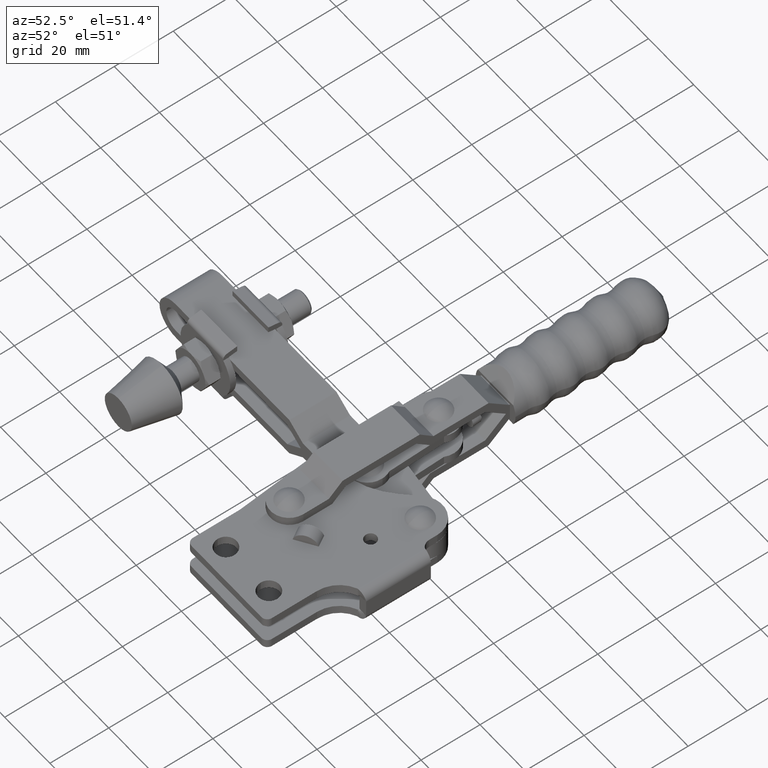
[diagram: clean part render]
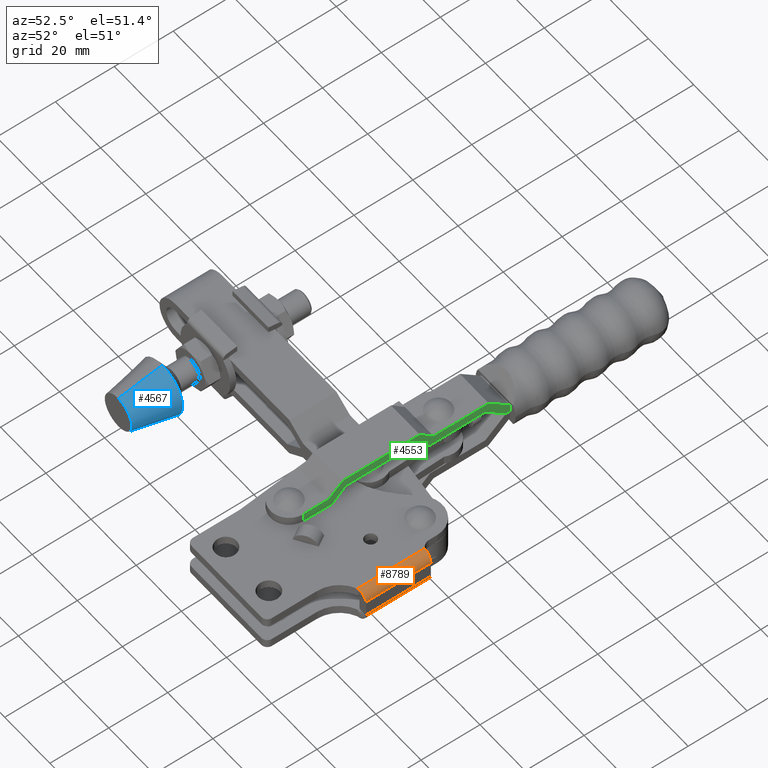
[diagram: same view with three faces highlighted in distinct colors, each labeled with its STEP entity id]
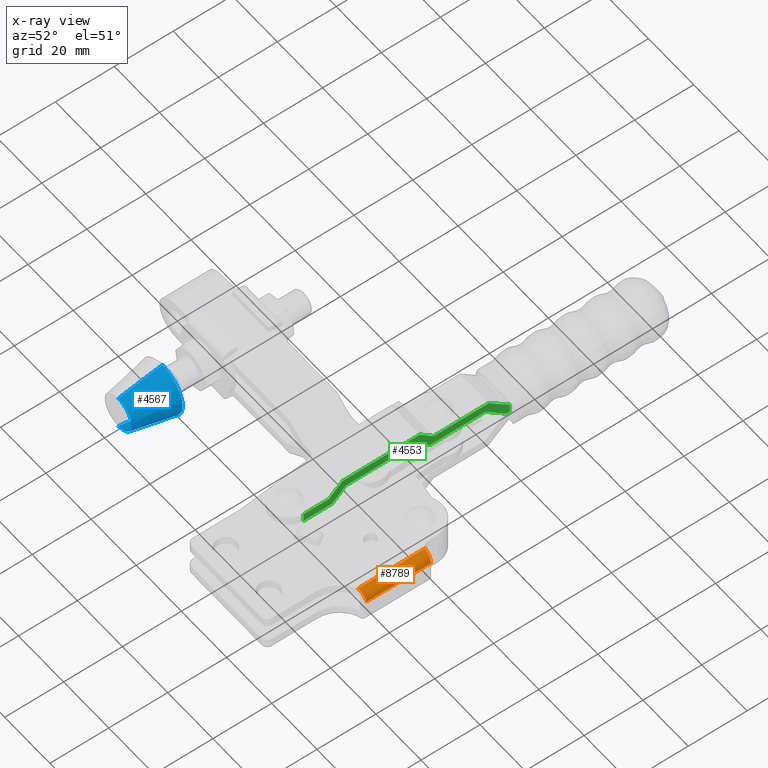
[diagram: x-ray of the same camera — body ghosted, the three highlighted faces saturated]
A machine part, auxiliary view with three faces highlighted in distinct colors.
The next image is the same camera in x-ray (body ghosted, the three faces saturated) — at least one of them is partly hidden behind the body in this view.
Their STEP definitions:

[orange] entity #8789 — the highlighted cylindrical surface (edge-blend (fillet) strip) has radius 3.1 mm, axis along (-0, 1, 0).
#142 = CARTESIAN_POINT ( 'NONE',  ( -3.045678445934216300, 11.53098508328860400, 6.001736991308387600 ) ) ;
#226 = CYLINDRICAL_SURFACE ( 'NONE', #8078, 3.099999999026224800 ) ;
#392 = ORIENTED_EDGE ( 'NONE', *, *, #4738, .T. ) ;
#402 = CARTESIAN_POINT ( 'NONE',  ( -0.1221564959144483400, 34.04999999999978400, 3.767319761611164400 ) ) ;
#513 = EDGE_CURVE ( 'NONE', #9479, #4195, #10591, .T. ) ;
#514 = CARTESIAN_POINT ( 'NONE',  ( -0.2331809146840553800, 11.94338737816124900, 4.099086413012581300 ) ) ;
#563 = CARTESIAN_POINT ( 'NONE',  ( -3.018960108299604700, 11.54236631933049800, 6.001563568345219800 ) ) ;
#1297 = CARTESIAN_POINT ( 'NONE',  ( -3.098960105732759800, 34.39615173331817700, 6.002079783401238300 ) ) ;
#1482 = CARTESIAN_POINT ( 'NONE',  ( -0.03020822293369760500, 12.02844444407953400, 3.380133234378718500 ) ) ;
#1513 = CARTESIAN_POINT ( 'NONE',  ( -0.4965445879792042000, 11.87943285318197400, 4.596849266663148200 ) ) ;
#1891 = EDGE_CURVE ( 'NONE', #8590, #2868, #4583, .T. ) ;
#1967 = DIRECTION ( 'NONE',  ( 3.150134990220517700E-018, -1.000000000000000000, -3.150134990220476500E-018 ) ) ;
#1990 = CARTESIAN_POINT ( 'NONE',  ( 0.001039885847456533700, 2.049999999999808900, 2.902079784374985000 ) ) ;
#2188 = ORIENTED_EDGE ( 'NONE', *, *, #12086, .F. ) ;
#2283 = CARTESIAN_POINT ( 'NONE',  ( -3.098960105732759800, 34.39615173331817700, 6.002079783401238300 ) ) ;
#2382 = AXIS2_PLACEMENT_3D ( 'NONE', #11028, #5070, #11996 ) ;
#2516 = ORIENTED_EDGE ( 'NONE', *, *, #8283, .F. ) ;
#2530 = CARTESIAN_POINT ( 'NONE',  ( -0.8447768236198737200, 11.81574302031403100, 5.038422140587950800 ) ) ;
#2673 = ORIENTED_EDGE ( 'NONE', *, *, #513, .F. ) ;
#2755 = CARTESIAN_POINT ( 'NONE',  ( -3.072345646090469000, 11.51948819496457500, 6.002079783337314300 ) ) ;
#2868 = VERTEX_POINT ( 'NONE', #9878 ) ;
#2983 = VECTOR ( 'NONE', #8922, 1000.000000000000000 ) ;
#2999 = ORIENTED_EDGE ( 'NONE', *, *, #11244, .F. ) ;
#3085 = CARTESIAN_POINT ( 'NONE',  ( 0.001039885847456438900, 34.04999999999977000, 2.902079784374985000 ) ) ;
#3216 = CARTESIAN_POINT ( 'NONE',  ( -3.072500876766266000, 34.38220391037091900, 6.002079783337686400 ) ) ;
#3246 = EDGE_CURVE ( 'NONE', #11247, #6685, #5251, .T. ) ;
#3258 = CARTESIAN_POINT ( 'NONE',  ( -3.045828140374031700, 34.36864945063590000, 6.001740859716840700 ) ) ;
#3301 = CARTESIAN_POINT ( 'NONE',  ( -3.018960108299604700, 34.35549740532390200, 6.001563568345221500 ) ) ;
#3430 = CARTESIAN_POINT ( 'NONE',  ( -0.01253031630900878700, 12.04999999999980700, 3.191822951606079000 ) ) ;
#3514 = CARTESIAN_POINT ( 'NONE',  ( -1.266602435784617100, 11.75232601685451600, 5.409539532628474300 ) ) ;
#3773 = CARTESIAN_POINT ( 'NONE',  ( -0.1221564959144483400, 34.04999999999978400, 3.767319761611164400 ) ) ;
#4195 = VERTEX_POINT ( 'NONE', #10348 ) ;
#4338 = CARTESIAN_POINT ( 'NONE',  ( -2.371340545442743900, 34.30543271636570800, 5.933243377743761600 ) ) ;
#4497 = CARTESIAN_POINT ( 'NONE',  ( -1.749792910008147500, 11.68897919226756900, 5.699377672571963600 ) ) ;
#4583 = B_SPLINE_CURVE_WITH_KNOTS ( 'NONE', 3,
 ( #1297, #3216, #3258, #3301 ),
 .UNSPECIFIED., .F., .F.,
 ( 4, 4 ),
 ( 4.336808689942017700E-019, 8.973122643421070900E-005 ),
 .UNSPECIFIED. ) ;
#4622 = CARTESIAN_POINT ( 'NONE',  ( -3.098960105732758500, 11.50787628714082800, 6.002079783401235600 ) ) ;
#4738 = EDGE_CURVE ( 'NONE', #11247, #5916, #8250, .T. ) ;
#5070 = DIRECTION ( 'NONE',  ( -3.150134990220517700E-018, 1.000000000000000000, 3.150134990220476500E-018 ) ) ;
#5129 = AXIS2_PLACEMENT_3D ( 'NONE', #7890, #1967, #8895 ) ;
#5251 = CIRCLE ( 'NONE', #5129, 3.099999999026224400 ) ;
#5299 = VERTEX_POINT ( 'NONE', #3773 ) ;
#5306 = DIRECTION ( 'NONE',  ( -3.150134990218940000E-018, 1.000000000000000000, 3.150134990222138200E-018 ) ) ;
#5343 = CARTESIAN_POINT ( 'NONE',  ( -1.466790364682010400, 34.22946738586600900, 5.557776937081255800 ) ) ;
#5505 = CARTESIAN_POINT ( 'NONE',  ( -2.274902421825323100, 11.62619720795939800, 5.896396987029176800 ) ) ;
#5514 = FACE_OUTER_BOUND ( 'NONE', #11035, .T. ) ;
#5539 = CARTESIAN_POINT ( 'NONE',  ( -3.018960108299604700, 11.54236631933049800, 6.001563568345219800 ) ) ;
#5916 = VERTEX_POINT ( 'NONE', #3085 ) ;
#5954 = VECTOR ( 'NONE', #5306, 1000.000000000000000 ) ;
#6338 = CARTESIAN_POINT ( 'NONE',  ( -0.3057360096040137600, 34.10189953363462900, 4.398913509918811500 ) ) ;
#6353 = CARTESIAN_POINT ( 'NONE',  ( -3.018960108299604700, 11.54236631933049800, 6.001563568345219800 ) ) ;
#6462 = CARTESIAN_POINT ( 'NONE',  ( -0.1659199522001438000, 11.96476040636059300, 3.922886192099500800 ) ) ;
#6504 = CARTESIAN_POINT ( 'NONE',  ( -2.829822279378975100, 11.56337518649471900, 5.996164750648163500 ) ) ;
#6584 = CARTESIAN_POINT ( 'NONE',  ( -3.098960113178768100, 2.049999999999808900, 2.902079784375015200 ) ) ;
#6593 = ORIENTED_EDGE ( 'NONE', *, *, #1891, .F. ) ;
#6685 = VERTEX_POINT ( 'NONE', #12177 ) ;
#7227 = B_SPLINE_CURVE_WITH_KNOTS ( 'NONE', 3,
 ( #8302, #9281, #4338, #11297, #5343, #12271, #6338, #402 ),
 .UNSPECIFIED., .F., .F.,
 ( 4, 2, 2, 4 ),
 ( 0.0000000000000000000, 0.0009756193782402993800, 0.001951238756480598800, 0.003902477512961201000 ),
 .UNSPECIFIED. ) ;
#7445 = CARTESIAN_POINT ( 'NONE',  ( -0.3992856421804824600, 11.90054835723052500, 4.437421125630241800 ) ) ;
#7552 = ORIENTED_EDGE ( 'NONE', *, *, #3246, .F. ) ;
#7890 = CARTESIAN_POINT ( 'NONE',  ( -3.098960113178768100, 12.04999999999981100, 2.902079784375015200 ) ) ;
#8078 = AXIS2_PLACEMENT_3D ( 'NONE', #6584, #8572, #9576 ) ;
#8250 = LINE ( 'NONE', #1990, #2983 ) ;
#8283 = EDGE_CURVE ( 'NONE', #6685, #9479, #12778, .T. ) ;
#8302 = CARTESIAN_POINT ( 'NONE',  ( -3.018960108299604700, 34.35549740532390200, 6.001563568345221500 ) ) ;
#8464 = CARTESIAN_POINT ( 'NONE',  ( -0.7185945119749407300, 11.83713277036068800, 4.896740098438652200 ) ) ;
#8572 = DIRECTION ( 'NONE',  ( -3.150134990218940000E-018, 1.000000000000000000, 3.150134990222138200E-018 ) ) ;
#8590 = VERTEX_POINT ( 'NONE', #2283 ) ;
#8611 = LINE ( 'NONE', #9248, #5954 ) ;
#8789 = ADVANCED_FACE ( 'NONE', ( #5514 ), #226, .T. ) ;
#8895 = DIRECTION ( 'NONE',  ( 1.000000000000000000, 0.0000000000000000000, 3.497426363955081500E-015 ) ) ;
#8922 = DIRECTION ( 'NONE',  ( -3.150134990218940000E-018, 1.000000000000000000, 3.150134990222138200E-018 ) ) ;
#9041 = CIRCLE ( 'NONE', #2382, 3.099999999026224400 ) ;
#9240 = ORIENTED_EDGE ( 'NONE', *, *, #10936, .F. ) ;
#9248 = CARTESIAN_POINT ( 'NONE',  ( -3.098960105732758900, 2.049999999999808900, 6.002079783401240000 ) ) ;
#9281 = CARTESIAN_POINT ( 'NONE',  ( -2.690152809551880100, 34.33018477044155500, 5.992559176204689000 ) ) ;
#9442 = CARTESIAN_POINT ( 'NONE',  ( -1.119289166192399200, 11.77328420068846500, 5.295028573533296700 ) ) ;
#9479 = VERTEX_POINT ( 'NONE', #5539 ) ;
#9576 = DIRECTION ( 'NONE',  ( -3.497426363955081100E-015, 0.0000000000000000000, 1.000000000000000000 ) ) ;
#9878 = CARTESIAN_POINT ( 'NONE',  ( -3.018960108299604700, 34.35549740532390200, 6.001563568345221500 ) ) ;
#10024 = CARTESIAN_POINT ( 'NONE',  ( 0.001039885847456506800, 12.04999999999981100, 2.902079784374985000 ) ) ;
#10348 = CARTESIAN_POINT ( 'NONE',  ( -3.098960105732758500, 11.50787628714082800, 6.002079783401235600 ) ) ;
#10466 = CARTESIAN_POINT ( 'NONE',  ( -1.580932872088051100, 11.71027988544051200, 5.611412237641519400 ) ) ;
#10591 = B_SPLINE_CURVE_WITH_KNOTS ( 'NONE', 3,
 ( #6353, #142, #2755, #4622 ),
 .UNSPECIFIED., .F., .F.,
 ( 4, 4 ),
 ( 3.066796221721583700E-013, 8.711195548386877000E-005 ),
 .UNSPECIFIED. ) ;
#10936 = EDGE_CURVE ( 'NONE', #4195, #8590, #8611, .T. ) ;
#11028 = CARTESIAN_POINT ( 'NONE',  ( -3.098960113178768100, 34.04999999999977000, 2.902079784375015200 ) ) ;
#11035 = EDGE_LOOP ( 'NONE', ( #9240, #2673, #2516, #7552, #392, #2999, #2188, #6593 ) ) ;
#11244 = EDGE_CURVE ( 'NONE', #5299, #5916, #9041, .T. ) ;
#11247 = VERTEX_POINT ( 'NONE', #10024 ) ;
#11297 = CARTESIAN_POINT ( 'NONE',  ( -1.753669656578079400, 34.25460419913539300, 5.714121134087998000 ) ) ;
#11441 = CARTESIAN_POINT ( 'NONE',  ( -2.096633386671110400, 11.64696890269767900, 5.841547210755306800 ) ) ;
#11996 = DIRECTION ( 'NONE',  ( -1.000000000000000000, 0.0000000000000000000, -8.813514437166805200E-015 ) ) ;
#12086 = EDGE_CURVE ( 'NONE', #2868, #5299, #7227, .T. ) ;
#12177 = CARTESIAN_POINT ( 'NONE',  ( -0.01253031630900878700, 12.04999999999980700, 3.191822951606079000 ) ) ;
#12271 = CARTESIAN_POINT ( 'NONE',  ( -0.6902606955853614100, 34.15287495967341200, 4.959988663066552000 ) ) ;
#12373 = CARTESIAN_POINT ( 'NONE',  ( -0.06470546832688155200, 12.00722222592383300, 3.563947639886697600 ) ) ;
#12424 = CARTESIAN_POINT ( 'NONE',  ( -2.641016419244491600, 11.58445148229010400, 5.973772178150024800 ) ) ;
#12778 = B_SPLINE_CURVE_WITH_KNOTS ( 'NONE', 3,
 ( #3430, #1482, #12373, #6462, #514, #7445, #1513, #8464, #2530, #9442, #3514, #10466, #4497, #11441, #5505, #12424, #6504, #563 ),
 .UNSPECIFIED., .F., .F.,
 ( 4, 2, 2, 2, 2, 2, 2, 2, 4 ),
 ( 4.543635057563097100E-019, 0.0005629817172116483000, 0.001125963434423296200, 0.001688945151634944000, 0.002251926868846591900, 0.002814908586058239800, 0.003377890303269887600, 0.003940872020481535500, 0.004503853737693183800 ),
 .UNSPECIFIED. ) ;

[blue] entity #4567 — the highlighted conical surface has half-angle 11.31 deg.
#315 = VECTOR ( 'NONE', #2446, 1000.000000000000000 ) ;
#550 = EDGE_CURVE ( 'NONE', #5043, #10901, #2464, .T. ) ;
#742 = AXIS2_PLACEMENT_3D ( 'NONE', #11605, #1713, #5699 ) ;
#1713 = DIRECTION ( 'NONE',  ( 0.0000000000000000000, 1.000000000000000000, 0.0000000000000000000 ) ) ;
#1775 = CARTESIAN_POINT ( 'NONE',  ( -94.37569315383768800, 15.29999999999952100, 3.295974604355933500E-014 ) ) ;
#1887 = VERTEX_POINT ( 'NONE', #3173 ) ;
#2052 = EDGE_CURVE ( 'NONE', #6351, #5043, #4806, .T. ) ;
#2325 = CARTESIAN_POINT ( 'NONE',  ( -94.37569315383768800, 15.29999999999952100, 9.000000000000032000 ) ) ;
#2446 = DIRECTION ( 'NONE',  ( 2.401729971581267900E-017, 0.9805806756909202200, -0.1961161351381839900 ) ) ;
#2464 = LINE ( 'NONE', #4444, #4759 ) ;
#2792 = DIRECTION ( 'NONE',  ( 0.0000000000000000000, 0.0000000000000000000, -1.000000000000000000 ) ) ;
#2967 = LINE ( 'NONE', #6370, #315 ) ;
#3173 = CARTESIAN_POINT ( 'NONE',  ( -94.37569315383768800, 15.29999999999952100, -8.999999999999966200 ) ) ;
#3933 = DIRECTION ( 'NONE',  ( 0.0000000000000000000, 0.9805806756909202200, 0.1961161351381839900 ) ) ;
#4178 = CIRCLE ( 'NONE', #9418, 9.000000000000000000 ) ;
#4444 = CARTESIAN_POINT ( 'NONE',  ( -94.37569315383768800, 0.2999999999995207600, 6.000000000000032900 ) ) ;
#4567 = ADVANCED_FACE ( 'NONE', ( #11669 ), #12739, .T. ) ;
#4759 = VECTOR ( 'NONE', #3933, 1000.000000000000000 ) ;
#4806 = CIRCLE ( 'NONE', #12184, 6.000000000000000000 ) ;
#5043 = VERTEX_POINT ( 'NONE', #12430 ) ;
#5100 = ORIENTED_EDGE ( 'NONE', *, *, #5284, .T. ) ;
#5193 = EDGE_LOOP ( 'NONE', ( #6597, #10769, #5100, #8760 ) ) ;
#5284 = EDGE_CURVE ( 'NONE', #1887, #10901, #4178, .T. ) ;
#5699 = DIRECTION ( 'NONE',  ( 0.0000000000000000000, 0.0000000000000000000, 1.000000000000000000 ) ) ;
#6351 = VERTEX_POINT ( 'NONE', #6655 ) ;
#6370 = CARTESIAN_POINT ( 'NONE',  ( -94.37569315383768800, 0.2999999999995207600, -5.999999999999967100 ) ) ;
#6597 = ORIENTED_EDGE ( 'NONE', *, *, #2052, .F. ) ;
#6655 = CARTESIAN_POINT ( 'NONE',  ( -94.37569315383768800, 0.2999999999995207600, -5.999999999999967100 ) ) ;
#6877 = EDGE_CURVE ( 'NONE', #6351, #1887, #2967, .T. ) ;
#8725 = DIRECTION ( 'NONE',  ( -0.0000000000000000000, -1.000000000000000000, -0.0000000000000000000 ) ) ;
#8760 = ORIENTED_EDGE ( 'NONE', *, *, #550, .F. ) ;
#9418 = AXIS2_PLACEMENT_3D ( 'NONE', #1775, #8725, #2792 ) ;
#10516 = CARTESIAN_POINT ( 'NONE',  ( -94.37569315383768800, 0.2999999999995207600, 3.295974604355933500E-014 ) ) ;
#10586 = DIRECTION ( 'NONE',  ( -0.0000000000000000000, -1.000000000000000000, -0.0000000000000000000 ) ) ;
#10769 = ORIENTED_EDGE ( 'NONE', *, *, #6877, .T. ) ;
#10901 = VERTEX_POINT ( 'NONE', #2325 ) ;
#11411 = DIRECTION ( 'NONE',  ( 0.0000000000000000000, 0.0000000000000000000, -1.000000000000000000 ) ) ;
#11605 = CARTESIAN_POINT ( 'NONE',  ( -94.37569315383768800, 0.2999999999995207600, 3.295974604355933500E-014 ) ) ;
#11669 = FACE_OUTER_BOUND ( 'NONE', #5193, .T. ) ;
#12184 = AXIS2_PLACEMENT_3D ( 'NONE', #10516, #10586, #11411 ) ;
#12430 = CARTESIAN_POINT ( 'NONE',  ( -94.37569315383768800, 0.2999999999995207600, 6.000000000000032900 ) ) ;
#12739 = CONICAL_SURFACE ( 'NONE', #742, 6.000000000000000000, 0.1973955598498806600 ) ;

[green] entity #4553 — the highlighted planar face has unit normal (-1, -0, 0).
#137 = ORIENTED_EDGE ( 'NONE', *, *, #6392, .F. ) ;
#143 = VECTOR ( 'NONE', #12483, 1000.000000000000000 ) ;
#146 = VECTOR ( 'NONE', #536, 1000.000000000000000 ) ;
#272 = ORIENTED_EDGE ( 'NONE', *, *, #3495, .F. ) ;
#277 = CARTESIAN_POINT ( 'NONE',  ( -30.45000000000021200, 23.91073911505412000, 5.999999999999999100 ) ) ;
#282 = EDGE_CURVE ( 'NONE', #8475, #1999, #3552, .T. ) ;
#318 = VERTEX_POINT ( 'NONE', #7415 ) ;
#474 = LINE ( 'NONE', #10441, #146 ) ;
#536 = DIRECTION ( 'NONE',  ( -6.037836059286575600E-035, 1.000000000000000000, -1.120141832160472100E-017 ) ) ;
#632 = VECTOR ( 'NONE', #5669, 1000.000000000000000 ) ;
#636 = DIRECTION ( 'NONE',  ( 6.524963932185543200E-018, -0.7395816682805648200, 0.6730668287349602700 ) ) ;
#781 = VECTOR ( 'NONE', #12193, 1000.000000000000000 ) ;
#849 = VECTOR ( 'NONE', #636, 1000.000000000000100 ) ;
#900 = EDGE_CURVE ( 'NONE', #5128, #12594, #5387, .T. ) ;
#1103 = VERTEX_POINT ( 'NONE', #4896 ) ;
#1216 = VECTOR ( 'NONE', #11091, 1000.000000000000000 ) ;
#1257 = VERTEX_POINT ( 'NONE', #7878 ) ;
#1381 = DIRECTION ( 'NONE',  ( -6.524963932185714200E-018, -0.7395816682805490500, -0.6730668287349779200 ) ) ;
#1384 = EDGE_CURVE ( 'NONE', #4794, #10429, #11407, .T. ) ;
#1477 = CARTESIAN_POINT ( 'NONE',  ( -30.45000000000021200, 23.91073911505412000, 5.999999999999999100 ) ) ;
#1999 = VERTEX_POINT ( 'NONE', #4500 ) ;
#2030 = ORIENTED_EDGE ( 'NONE', *, *, #3944, .F. ) ;
#2065 = VECTOR ( 'NONE', #1381, 1000.000000000000000 ) ;
#2211 = EDGE_CURVE ( 'NONE', #9822, #1103, #3590, .T. ) ;
#2236 = VERTEX_POINT ( 'NONE', #9703 ) ;
#2480 = EDGE_CURVE ( 'NONE', #4709, #8475, #2505, .T. ) ;
#2505 = LINE ( 'NONE', #2948, #9467 ) ;
#2519 = ORIENTED_EDGE ( 'NONE', *, *, #2480, .F. ) ;
#2567 = VERTEX_POINT ( 'NONE', #5925 ) ;
#2627 = ORIENTED_EDGE ( 'NONE', *, *, #1384, .F. ) ;
#2690 = CARTESIAN_POINT ( 'NONE',  ( -30.45000000000020500, 42.74860485164405300, -23.34366796156478300 ) ) ;
#2767 = CARTESIAN_POINT ( 'NONE',  ( -30.45000000000020900, 83.99999999999963100, 2.900000000000009700 ) ) ;
#2948 = CARTESIAN_POINT ( 'NONE',  ( -30.45000000000021200, 14.09999999999966700, -13.44999999999996400 ) ) ;
#3244 = VECTOR ( 'NONE', #11258, 1000.000000000000200 ) ;
#3426 = CARTESIAN_POINT ( 'NONE',  ( -30.45000000000020500, 22.74999999999957700, 9.000000000000007100 ) ) ;
#3495 = EDGE_CURVE ( 'NONE', #10446, #2567, #5865, .T. ) ;
#3552 = LINE ( 'NONE', #3426, #1216 ) ;
#3590 = LINE ( 'NONE', #8899, #632 ) ;
#3600 = VECTOR ( 'NONE', #5429, 1000.000000000000000 ) ;
#3640 = VECTOR ( 'NONE', #11798, 1000.000000000000100 ) ;
#3680 = DIRECTION ( 'NONE',  ( -1.000000000000000000, -5.253726431192791600E-035, 7.000092359566945500E-019 ) ) ;
#3811 = DIRECTION ( 'NONE',  ( 7.000092359567007100E-019, 1.120141832160471200E-017, 1.000000000000000000 ) ) ;
#3944 = EDGE_CURVE ( 'NONE', #2236, #4709, #5694, .T. ) ;
#4151 = DIRECTION ( 'NONE',  ( -6.188014670768190400E-017, 0.7539095027499087600, -0.6569782809677847700 ) ) ;
#4258 = LINE ( 'NONE', #4864, #11563 ) ;
#4334 = EDGE_LOOP ( 'NONE', ( #10632, #6422, #11022, #5506, #272, #11046, #11370, #9851, #2519, #2030, #9791, #5321, #2627, #8894, #5799, #137 ) ) ;
#4500 = CARTESIAN_POINT ( 'NONE',  ( -30.45000000000020500, 22.74999999999957700, 9.000000000000007100 ) ) ;
#4553 = ADVANCED_FACE ( 'NONE', ( #11372 ), #8617, .F. ) ;
#4639 = CARTESIAN_POINT ( 'NONE',  ( -30.45000000000020500, 22.74999999999957700, 9.000000000000007100 ) ) ;
#4709 = VERTEX_POINT ( 'NONE', #7892 ) ;
#4794 = VERTEX_POINT ( 'NONE', #8043 ) ;
#4822 = VECTOR ( 'NONE', #12699, 1000.000000000000000 ) ;
#4864 = CARTESIAN_POINT ( 'NONE',  ( -30.45000000000020900, 57.12926088494563000, 6.000000000000002700 ) ) ;
#4896 = CARTESIAN_POINT ( 'NONE',  ( -30.45000000000020900, 84.24797925789401600, -0.09994999999999909500 ) ) ;
#4965 = CARTESIAN_POINT ( 'NONE',  ( -30.45000000000021200, 14.09999999999966700, 9.000000000000007100 ) ) ;
#5126 = EDGE_CURVE ( 'NONE', #8904, #9822, #474, .T. ) ;
#5128 = VERTEX_POINT ( 'NONE', #6482 ) ;
#5207 = CARTESIAN_POINT ( 'NONE',  ( -30.45000000000020500, 53.61999999999977700, 13.24999999999998200 ) ) ;
#5321 = ORIENTED_EDGE ( 'NONE', *, *, #12168, .F. ) ;
#5387 = LINE ( 'NONE', #12201, #10371 ) ;
#5414 = EDGE_CURVE ( 'NONE', #2567, #318, #6030, .T. ) ;
#5429 = DIRECTION ( 'NONE',  ( 6.037836059286576700E-035, -1.000000000000000000, 1.120141832160472100E-017 ) ) ;
#5506 = ORIENTED_EDGE ( 'NONE', *, *, #5414, .F. ) ;
#5669 = DIRECTION ( 'NONE',  ( -7.000092359566945500E-019, -7.124931547662663900E-035, -1.000000000000000000 ) ) ;
#5694 = LINE ( 'NONE', #1477, #8345 ) ;
#5799 = ORIENTED_EDGE ( 'NONE', *, *, #900, .F. ) ;
#5865 = LINE ( 'NONE', #9245, #3244 ) ;
#5925 = CARTESIAN_POINT ( 'NONE',  ( -30.45000000000020500, 58.29000000000017700, 9.000000000000007100 ) ) ;
#6030 = LINE ( 'NONE', #9205, #781 ) ;
#6092 = LINE ( 'NONE', #9097, #8442 ) ;
#6221 = LINE ( 'NONE', #12350, #3600 ) ;
#6392 = EDGE_CURVE ( 'NONE', #1103, #5128, #10112, .T. ) ;
#6422 = ORIENTED_EDGE ( 'NONE', *, *, #5126, .F. ) ;
#6482 = CARTESIAN_POINT ( 'NONE',  ( -30.45000000000020900, 82.89017039430386500, -0.09995000000000298100 ) ) ;
#6494 = DIRECTION ( 'NONE',  ( 6.188014670768188000E-017, -0.7539095027499084200, 0.6569782809677848800 ) ) ;
#6576 = VERTEX_POINT ( 'NONE', #10056 ) ;
#6708 = CARTESIAN_POINT ( 'NONE',  ( -30.45000000000020900, 52.45926088494544400, 10.24999999999998000 ) ) ;
#6970 = EDGE_CURVE ( 'NONE', #6576, #10446, #10417, .T. ) ;
#7155 = CARTESIAN_POINT ( 'NONE',  ( -30.45000000000020900, 52.45926088494544400, 10.24999999999998000 ) ) ;
#7354 = CARTESIAN_POINT ( 'NONE',  ( -30.45000000000020900, 84.24797925789400200, 2.900000000000009700 ) ) ;
#7356 = LINE ( 'NONE', #277, #2065 ) ;
#7415 = CARTESIAN_POINT ( 'NONE',  ( -30.45000000000020900, 76.99999999999970200, 8.999999999999998200 ) ) ;
#7878 = CARTESIAN_POINT ( 'NONE',  ( -30.45000000000020500, 28.58073911505407200, 10.24999999999998000 ) ) ;
#7892 = CARTESIAN_POINT ( 'NONE',  ( -30.45000000000021200, 14.09999999999966700, 6.000000000000003600 ) ) ;
#8043 = CARTESIAN_POINT ( 'NONE',  ( -30.45000000000020900, 57.12926088494563000, 6.000000000000002700 ) ) ;
#8345 = VECTOR ( 'NONE', #10376, 1000.000000000000000 ) ;
#8377 = CARTESIAN_POINT ( 'NONE',  ( -30.45000000000020500, 75.89022777135313900, 6.000000000000002700 ) ) ;
#8442 = VECTOR ( 'NONE', #4151, 1000.000000000000000 ) ;
#8475 = VERTEX_POINT ( 'NONE', #4965 ) ;
#8585 = CARTESIAN_POINT ( 'NONE',  ( -30.45000000000020500, 27.41999999999974900, 13.24999999999998200 ) ) ;
#8617 = PLANE ( 'NONE',  #10960 ) ;
#8894 = ORIENTED_EDGE ( 'NONE', *, *, #8939, .F. ) ;
#8899 = CARTESIAN_POINT ( 'NONE',  ( -30.45000000000020500, 84.24797925789400200, -23.34366796156478300 ) ) ;
#8904 = VERTEX_POINT ( 'NONE', #2767 ) ;
#8939 = EDGE_CURVE ( 'NONE', #12594, #4794, #4258, .T. ) ;
#9097 = CARTESIAN_POINT ( 'NONE',  ( -30.45000000000020900, 76.99999999999970200, 8.999999999999998200 ) ) ;
#9205 = CARTESIAN_POINT ( 'NONE',  ( -30.45000000000020500, 58.29000000000017700, 9.000000000000007100 ) ) ;
#9245 = CARTESIAN_POINT ( 'NONE',  ( -30.45000000000020500, 53.61999999999977700, 13.24999999999998200 ) ) ;
#9352 = EDGE_CURVE ( 'NONE', #1257, #2236, #7356, .T. ) ;
#9467 = VECTOR ( 'NONE', #3811, 1000.000000000000000 ) ;
#9703 = CARTESIAN_POINT ( 'NONE',  ( -30.45000000000021200, 23.91073911505412000, 5.999999999999999100 ) ) ;
#9791 = ORIENTED_EDGE ( 'NONE', *, *, #9352, .F. ) ;
#9822 = VERTEX_POINT ( 'NONE', #7354 ) ;
#9851 = ORIENTED_EDGE ( 'NONE', *, *, #282, .F. ) ;
#10056 = CARTESIAN_POINT ( 'NONE',  ( -30.45000000000020500, 27.41999999999974900, 13.24999999999998200 ) ) ;
#10112 = LINE ( 'NONE', #11716, #4822 ) ;
#10371 = VECTOR ( 'NONE', #6494, 999.9999999999998900 ) ;
#10376 = DIRECTION ( 'NONE',  ( 6.037836059286575600E-035, -1.000000000000000000, 1.120141832160472100E-017 ) ) ;
#10417 = LINE ( 'NONE', #8585, #143 ) ;
#10429 = VERTEX_POINT ( 'NONE', #7155 ) ;
#10441 = CARTESIAN_POINT ( 'NONE',  ( -30.45000000000020900, 83.99999999999963100, 2.900000000000009700 ) ) ;
#10446 = VERTEX_POINT ( 'NONE', #5207 ) ;
#10625 = DIRECTION ( 'NONE',  ( 6.037836059286575600E-035, -1.000000000000000000, 1.120141832160472000E-017 ) ) ;
#10632 = ORIENTED_EDGE ( 'NONE', *, *, #2211, .F. ) ;
#10816 = DIRECTION ( 'NONE',  ( 6.037836059286575600E-035, -1.000000000000000000, 1.120141832160472100E-017 ) ) ;
#10960 = AXIS2_PLACEMENT_3D ( 'NONE', #2690, #3680, #10625 ) ;
#11022 = ORIENTED_EDGE ( 'NONE', *, *, #11302, .F. ) ;
#11046 = ORIENTED_EDGE ( 'NONE', *, *, #6970, .F. ) ;
#11091 = DIRECTION ( 'NONE',  ( -6.037836059286576700E-035, 1.000000000000000000, -1.120141832160472100E-017 ) ) ;
#11151 = EDGE_CURVE ( 'NONE', #1999, #6576, #11547, .T. ) ;
#11258 = DIRECTION ( 'NONE',  ( -6.524963932185372200E-018, 0.7395816682805809200, -0.6730668287349427200 ) ) ;
#11302 = EDGE_CURVE ( 'NONE', #318, #8904, #6092, .T. ) ;
#11370 = ORIENTED_EDGE ( 'NONE', *, *, #11151, .F. ) ;
#11372 = FACE_OUTER_BOUND ( 'NONE', #4334, .T. ) ;
#11407 = LINE ( 'NONE', #6708, #849 ) ;
#11547 = LINE ( 'NONE', #4639, #3640 ) ;
#11563 = VECTOR ( 'NONE', #10816, 1000.000000000000000 ) ;
#11716 = CARTESIAN_POINT ( 'NONE',  ( -30.45000000000020900, 77.09500142677072200, -0.09994999999999901200 ) ) ;
#11798 = DIRECTION ( 'NONE',  ( 6.524963932185543200E-018, 0.7395816682805648200, 0.6730668287349602700 ) ) ;
#12168 = EDGE_CURVE ( 'NONE', #10429, #1257, #6221, .T. ) ;
#12193 = DIRECTION ( 'NONE',  ( -6.037836059286575600E-035, 1.000000000000000000, -1.120141832160472100E-017 ) ) ;
#12201 = CARTESIAN_POINT ( 'NONE',  ( -30.45000000000020500, 75.89022777135313900, 6.000000000000002700 ) ) ;
#12350 = CARTESIAN_POINT ( 'NONE',  ( -30.45000000000020500, 28.58073911505407200, 10.24999999999998000 ) ) ;
#12483 = DIRECTION ( 'NONE',  ( -6.037836059286576700E-035, 1.000000000000000000, -1.120141832160472100E-017 ) ) ;
#12594 = VERTEX_POINT ( 'NONE', #8377 ) ;
#12699 = DIRECTION ( 'NONE',  ( 6.037836059286575600E-035, -1.000000000000000000, 1.120141832160472100E-017 ) ) ;